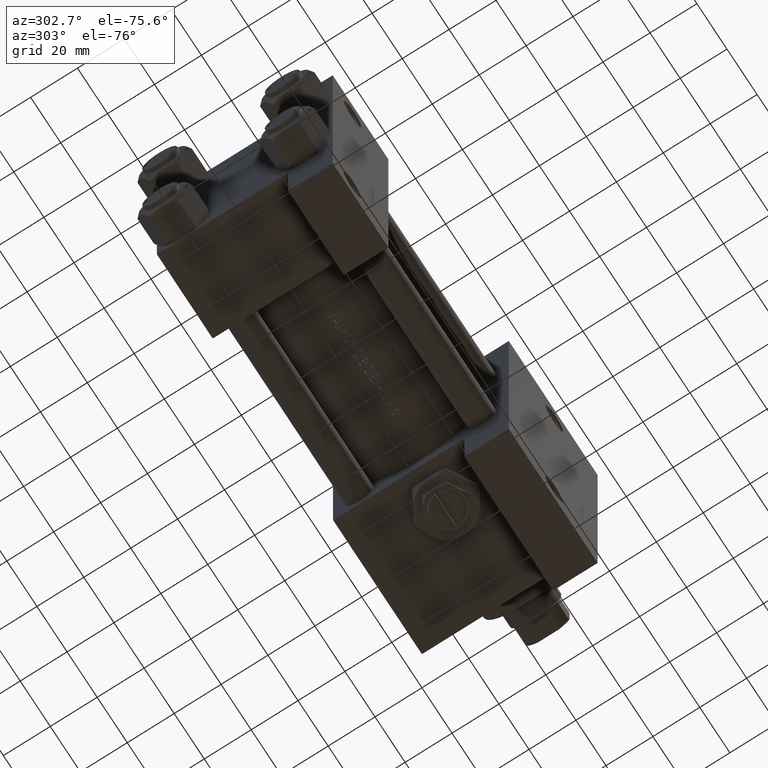
[diagram: clean part render]
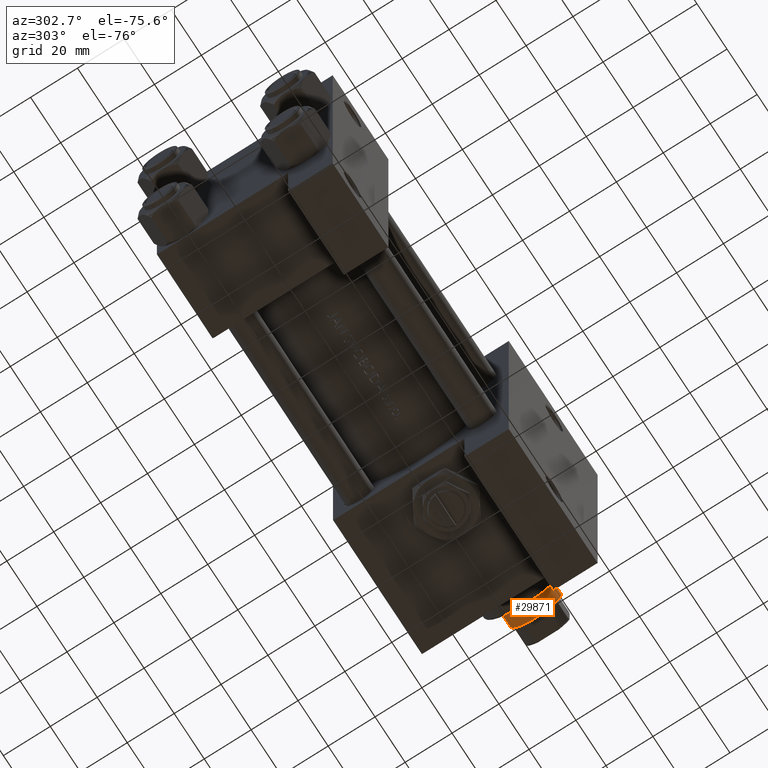
[diagram: same view with one face highlighted and labeled with its STEP entity id]
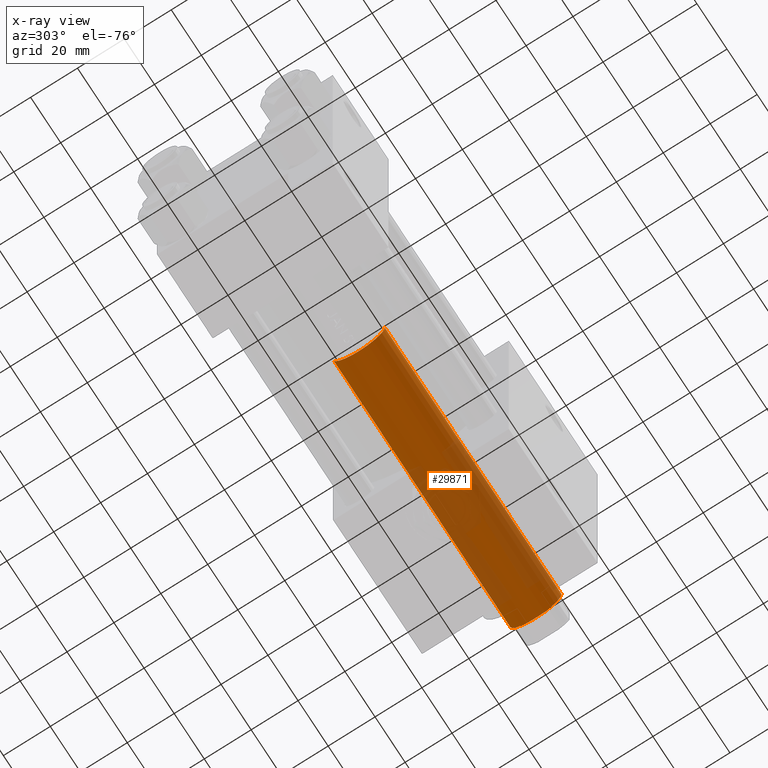
[diagram: x-ray of the same camera — body ghosted, the highlighted face saturated]
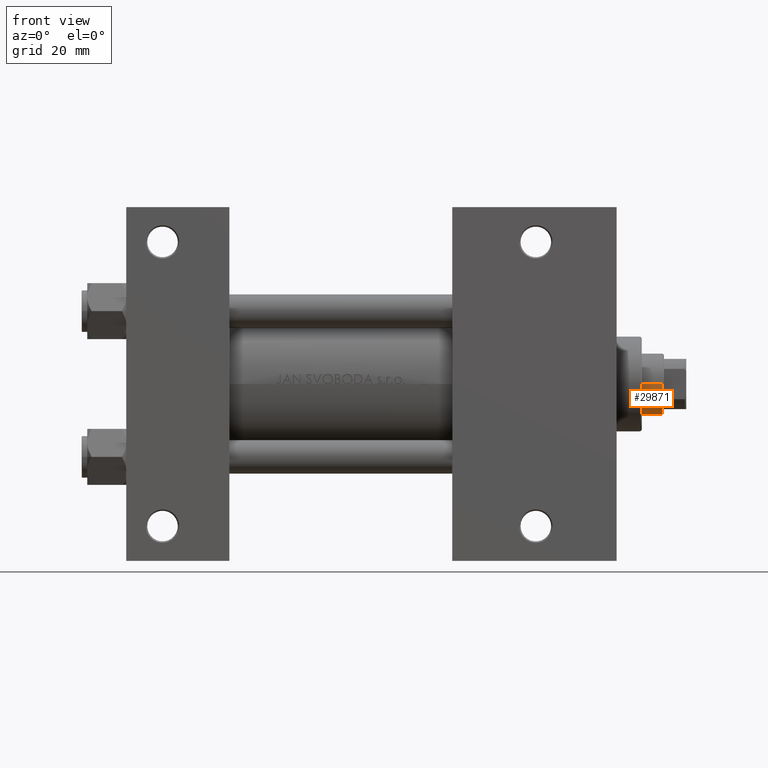
[diagram: same view with one face highlighted and labeled with its STEP entity id]
A machine part, auxiliary view. The second image highlights one B-rep face of the part: STEP entity #29871.
The next image is the same camera in x-ray: the body ghosted, the highlighted face saturated — about 41% of this face is hidden behind the body in this view.
A second angle (front view) of the same face is appended — the face is thin or edge-on in the first view.
In plain terms, the highlighted cylindrical surface (edge-blend (fillet) strip) has radius 11 mm, axis along (-1, 0, 0).
Its self-contained STEP definition (entity closure, byte-faithful):
#507 = VERTEX_POINT ( 'NONE', #19251 ) ;
#555 = CYLINDRICAL_SURFACE ( 'NONE', #38618, 11.00000000000000000 ) ;
#1468 = CARTESIAN_POINT ( 'NONE',  ( 11.00000000000000000, 1.347111479062088405E-15, 155.5000000000000000 ) ) ;
#1770 = ORIENTED_EDGE ( 'NONE', *, *, #4115, .T. ) ;
#2566 = LINE ( 'NONE', #6798, #6252 ) ;
#3527 = VECTOR ( 'NONE', #5652, 1000.000000000000000 ) ;
#3643 = VERTEX_POINT ( 'NONE', #36055 ) ;
#4115 = EDGE_CURVE ( 'NONE', #3643, #507, #12844, .T. ) ;
#5652 = DIRECTION ( 'NONE',  ( -0.000000000000000000, -0.000000000000000000, -1.000000000000000000 ) ) ;
#6252 = VECTOR ( 'NONE', #35937, 1000.000000000000000 ) ;
#6688 = ORIENTED_EDGE ( 'NONE', *, *, #10477, .T. ) ;
#6798 = CARTESIAN_POINT ( 'NONE',  ( -11.00000000000000000, 0.000000000000000000, 156.0000000000000000 ) ) ;
#8338 = DIRECTION ( 'NONE',  ( 0.000000000000000000, 0.000000000000000000, 1.000000000000000000 ) ) ;
#9616 = EDGE_CURVE ( 'NONE', #30724, #3643, #35801, .T. ) ;
#10477 = EDGE_CURVE ( 'NONE', #17248, #30724, #39349, .T. ) ;
#11749 = DIRECTION ( 'NONE',  ( -0.000000000000000000, -0.000000000000000000, -1.000000000000000000 ) ) ;
#12295 = DIRECTION ( 'NONE',  ( 1.000000000000000000, 0.000000000000000000, 0.000000000000000000 ) ) ;
#12483 = FACE_OUTER_BOUND ( 'NONE', #46619, .T. ) ;
#12844 = CIRCLE ( 'NONE', #18452, 11.00000000000000000 ) ;
#14677 = AXIS2_PLACEMENT_3D ( 'NONE', #34440, #30204, #19453 ) ;
#16272 = CARTESIAN_POINT ( 'NONE',  ( 0.000000000000000000, 0.000000000000000000, 38.00000000000000000 ) ) ;
#16857 = CARTESIAN_POINT ( 'NONE',  ( 11.00000000000000000, 1.347111479062088405E-15, 156.0000000000000000 ) ) ;
#17248 = VERTEX_POINT ( 'NONE', #34652 ) ;
#18452 = AXIS2_PLACEMENT_3D ( 'NONE', #16272, #8338, #12295 ) ;
#19251 = CARTESIAN_POINT ( 'NONE',  ( -11.00000000000000000, 0.000000000000000000, 38.00000000000000000 ) ) ;
#19453 = DIRECTION ( 'NONE',  ( 1.000000000000000000, 0.000000000000000000, 0.000000000000000000 ) ) ;
#22847 = ORIENTED_EDGE ( 'NONE', *, *, #9616, .T. ) ;
#23389 = EDGE_CURVE ( 'NONE', #17248, #507, #2566, .T. ) ;
#29871 = ADVANCED_FACE ( 'NONE', ( #12483 ), #555, .T. ) ;
#30204 = DIRECTION ( 'NONE',  ( 0.000000000000000000, 0.000000000000000000, -1.000000000000000000 ) ) ;
#30724 = VERTEX_POINT ( 'NONE', #1468 ) ;
#32208 = ORIENTED_EDGE ( 'NONE', *, *, #23389, .F. ) ;
#34440 = CARTESIAN_POINT ( 'NONE',  ( 0.000000000000000000, 0.000000000000000000, 155.5000000000000000 ) ) ;
#34652 = CARTESIAN_POINT ( 'NONE',  ( -11.00000000000000000, 0.000000000000000000, 155.5000000000000000 ) ) ;
#35801 = LINE ( 'NONE', #16857, #3527 ) ;
#35937 = DIRECTION ( 'NONE',  ( -0.000000000000000000, -0.000000000000000000, -1.000000000000000000 ) ) ;
#36055 = CARTESIAN_POINT ( 'NONE',  ( 11.00000000000000000, 1.347111479062088405E-15, 38.00000000000000000 ) ) ;
#38618 = AXIS2_PLACEMENT_3D ( 'NONE', #45893, #11749, #42152 ) ;
#39349 = CIRCLE ( 'NONE', #14677, 11.00000000000000000 ) ;
#42152 = DIRECTION ( 'NONE',  ( -1.000000000000000000, 0.000000000000000000, 0.000000000000000000 ) ) ;
#45893 = CARTESIAN_POINT ( 'NONE',  ( 0.000000000000000000, 0.000000000000000000, 156.0000000000000000 ) ) ;
#46619 = EDGE_LOOP ( 'NONE', ( #6688, #22847, #1770, #32208 ) ) ;